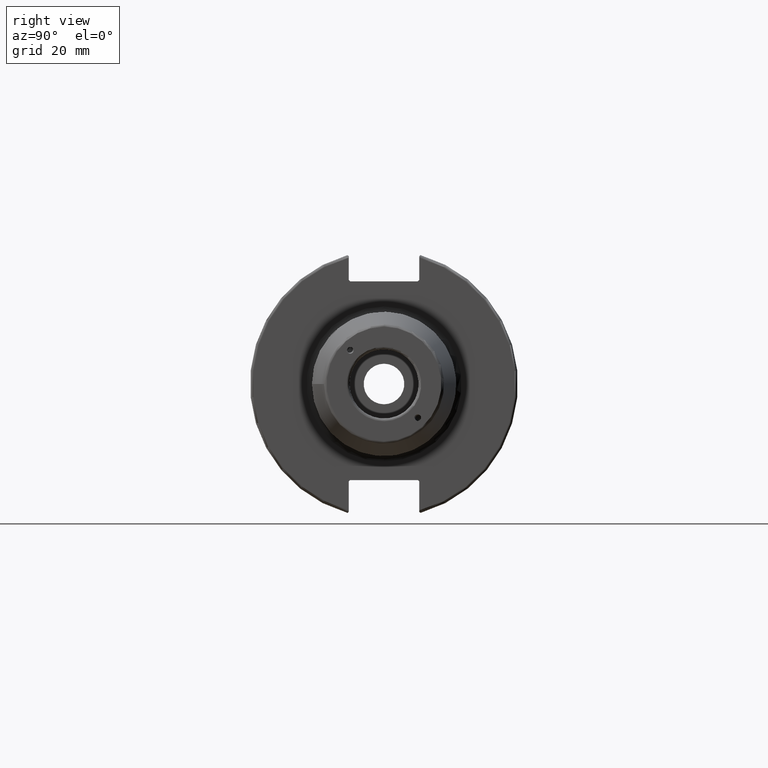
[diagram: clean part render]
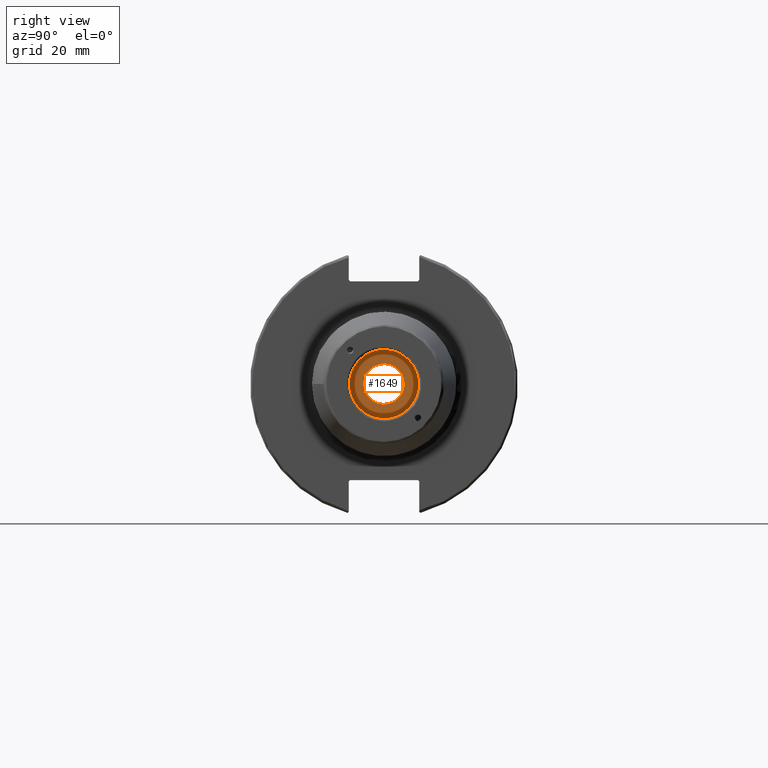
[diagram: same view with one face highlighted and labeled with its STEP entity id]
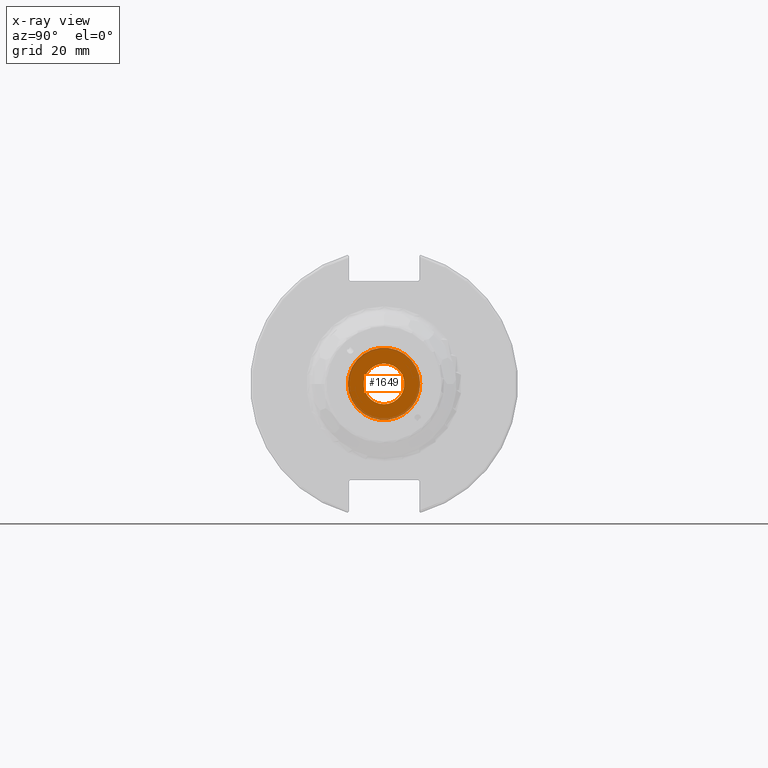
[diagram: x-ray of the same camera — body ghosted, the highlighted face saturated]
A machine part, right view. The second image highlights one B-rep face of the part: STEP entity #1649.
The next image is the same camera in x-ray: the body ghosted, the highlighted face saturated — about 13% of this face is hidden behind the body in this view.
In plain terms, the highlighted planar face has unit normal (1, 0, 0).
Its self-contained STEP definition (entity closure, byte-faithful):
#39=FACE_BOUND('',#317,.T.);
#57=PLANE('',#1794);
#136=CIRCLE('',#1784,7.458734);
#142=CIRCLE('',#1793,13.3);
#215=FACE_OUTER_BOUND('',#316,.T.);
#316=EDGE_LOOP('',(#1217));
#317=EDGE_LOOP('',(#1218));
#709=VERTEX_POINT('',#2700);
#719=VERTEX_POINT('',#2794);
#895=EDGE_CURVE('',#709,#709,#136,.T.);
#909=EDGE_CURVE('',#719,#719,#142,.T.);
#1217=ORIENTED_EDGE('',*,*,#909,.T.);
#1218=ORIENTED_EDGE('',*,*,#895,.T.);
#1649=ADVANCED_FACE('',(#215,#39),#57,.T.);
#1784=AXIS2_PLACEMENT_3D('',#2701,#2023,#2024);
#1793=AXIS2_PLACEMENT_3D('',#2796,#2045,#2046);
#1794=AXIS2_PLACEMENT_3D('',#2797,#2047,#2048);
#2023=DIRECTION('center_axis',(-1.,0.,0.));
#2024=DIRECTION('ref_axis',(0.,0.,-1.));
#2045=DIRECTION('center_axis',(1.,0.,0.));
#2046=DIRECTION('ref_axis',(0.,0.,-1.));
#2047=DIRECTION('center_axis',(1.,0.,0.));
#2048=DIRECTION('ref_axis',(0.,0.,-1.));
#2700=CARTESIAN_POINT('',(70.,-9.13431471879154E-16,7.458734));
#2701=CARTESIAN_POINT('Origin',(70.,0.,0.));
#2794=CARTESIAN_POINT('',(70.,-13.3,-1.62878024286598E-15));
#2796=CARTESIAN_POINT('Origin',(70.,0.,0.));
#2797=CARTESIAN_POINT('Origin',(70.,-6.66133814775094E-15,0.));